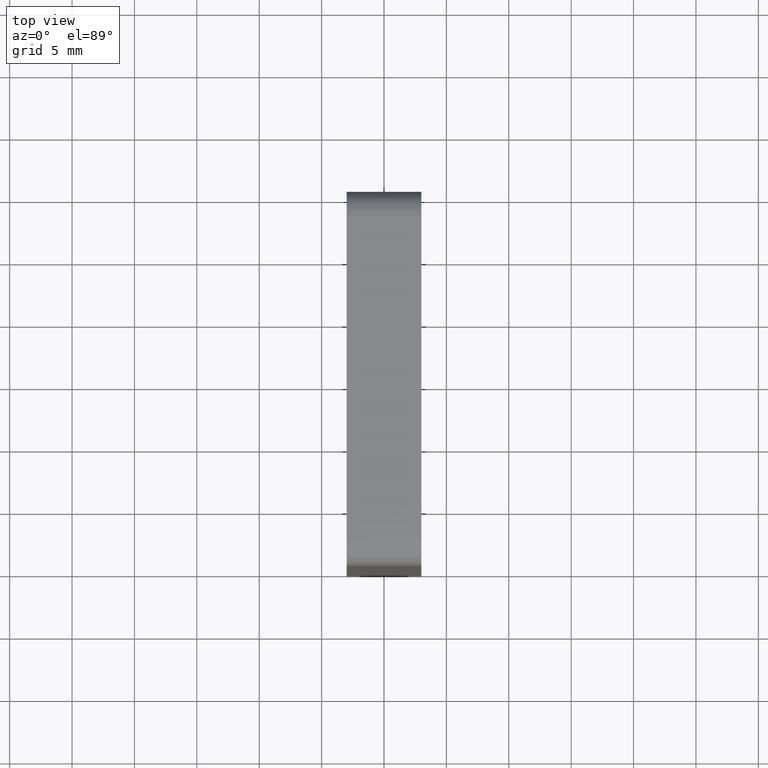
[diagram: clean part render]
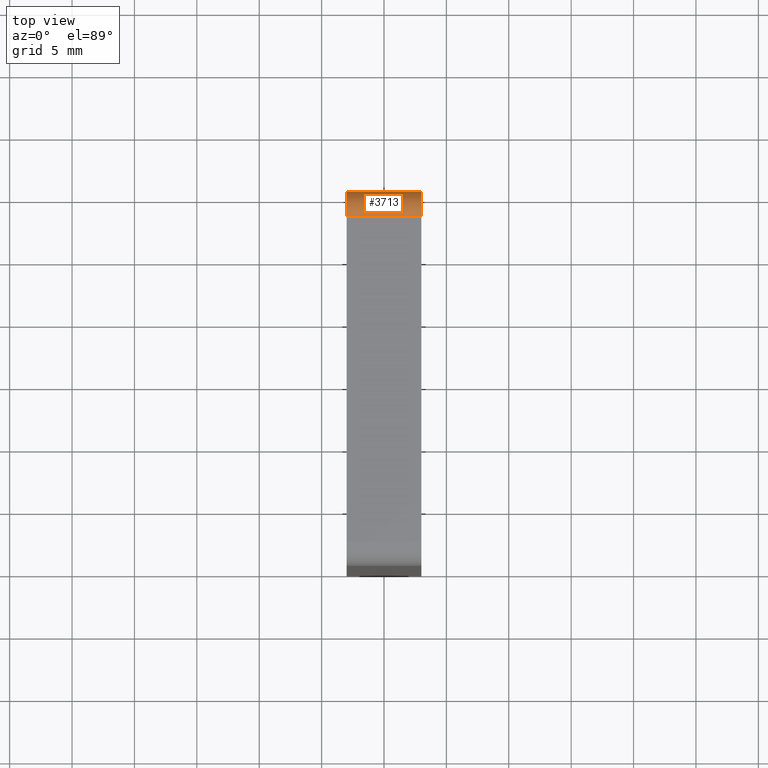
[diagram: same view with one face highlighted and labeled with its STEP entity id]
A machine part, top view. The second image highlights one B-rep face of the part: STEP entity #3713.
In plain terms, the highlighted cylindrical surface (edge-blend (fillet) strip) has radius 2 mm, axis along (-1, 0, 0).
Its self-contained STEP definition (entity closure, byte-faithful):
#55 = CYLINDRICAL_SURFACE ( 'NONE', #6594, 2.000000000000001800 ) ;
#267 = ORIENTED_EDGE ( 'NONE', *, *, #6975, .F. ) ;
#380 = VECTOR ( 'NONE', #5052, 1000.000000000000000 ) ;
#957 = VERTEX_POINT ( 'NONE', #1884 ) ;
#1833 = CARTESIAN_POINT ( 'NONE',  ( 3.000000000000000000, 12.99999999999999800, 49.99999999999997200 ) ) ;
#1884 = CARTESIAN_POINT ( 'NONE',  ( 3.000000000000000000, 12.99999999999999800, 49.99999999999997200 ) ) ;
#1987 = AXIS2_PLACEMENT_3D ( 'NONE', #9163, #6773, #8390 ) ;
#2040 = LINE ( 'NONE', #3089, #4448 ) ;
#2158 = LINE ( 'NONE', #1833, #380 ) ;
#2191 = DIRECTION ( 'NONE',  ( 0.0000000000000000000, 0.0000000000000000000, 1.000000000000000000 ) ) ;
#2290 = DIRECTION ( 'NONE',  ( -1.000000000000000000, -0.0000000000000000000, -0.0000000000000000000 ) ) ;
#2297 = ORIENTED_EDGE ( 'NONE', *, *, #5365, .F. ) ;
#3089 = CARTESIAN_POINT ( 'NONE',  ( 3.000000000000000000, 15.00000000000000000, 47.99999999999997200 ) ) ;
#3713 = ADVANCED_FACE ( 'NONE', ( #6220 ), #55, .T. ) ;
#3861 = DIRECTION ( 'NONE',  ( -1.000000000000000000, 0.0000000000000000000, 0.0000000000000000000 ) ) ;
#3987 = CARTESIAN_POINT ( 'NONE',  ( -3.000000000000000000, 15.00000000000000000, 47.99999999999997200 ) ) ;
#4400 = AXIS2_PLACEMENT_3D ( 'NONE', #8763, #2290, #8725 ) ;
#4448 = VECTOR ( 'NONE', #7812, 1000.000000000000000 ) ;
#4660 = VERTEX_POINT ( 'NONE', #10020 ) ;
#5052 = DIRECTION ( 'NONE',  ( -1.000000000000000000, 0.0000000000000000000, 0.0000000000000000000 ) ) ;
#5365 = EDGE_CURVE ( 'NONE', #5471, #4660, #2040, .T. ) ;
#5471 = VERTEX_POINT ( 'NONE', #3987 ) ;
#5728 = EDGE_LOOP ( 'NONE', ( #9436, #2297, #8406, #267 ) ) ;
#6220 = FACE_OUTER_BOUND ( 'NONE', #5728, .T. ) ;
#6594 = AXIS2_PLACEMENT_3D ( 'NONE', #10186, #3861, #2191 ) ;
#6773 = DIRECTION ( 'NONE',  ( 1.000000000000000000, 0.0000000000000000000, 0.0000000000000000000 ) ) ;
#6778 = CIRCLE ( 'NONE', #1987, 2.000000000000001800 ) ;
#6848 = EDGE_CURVE ( 'NONE', #7890, #5471, #7925, .T. ) ;
#6975 = EDGE_CURVE ( 'NONE', #957, #7890, #2158, .T. ) ;
#7812 = DIRECTION ( 'NONE',  ( 1.000000000000000000, -0.0000000000000000000, -0.0000000000000000000 ) ) ;
#7890 = VERTEX_POINT ( 'NONE', #9209 ) ;
#7925 = CIRCLE ( 'NONE', #4400, 2.000000000000001800 ) ;
#8390 = DIRECTION ( 'NONE',  ( 0.0000000000000000000, 0.0000000000000000000, 1.000000000000000000 ) ) ;
#8406 = ORIENTED_EDGE ( 'NONE', *, *, #6848, .F. ) ;
#8725 = DIRECTION ( 'NONE',  ( 0.0000000000000000000, 0.0000000000000000000, 1.000000000000000000 ) ) ;
#8763 = CARTESIAN_POINT ( 'NONE',  ( -3.000000000000000000, 12.99999999999999800, 47.99999999999997200 ) ) ;
#9163 = CARTESIAN_POINT ( 'NONE',  ( 3.000000000000000000, 12.99999999999999800, 47.99999999999997200 ) ) ;
#9209 = CARTESIAN_POINT ( 'NONE',  ( -3.000000000000000000, 12.99999999999999800, 49.99999999999997200 ) ) ;
#9436 = ORIENTED_EDGE ( 'NONE', *, *, #9685, .F. ) ;
#9685 = EDGE_CURVE ( 'NONE', #4660, #957, #6778, .T. ) ;
#10020 = CARTESIAN_POINT ( 'NONE',  ( 3.000000000000000000, 15.00000000000000000, 47.99999999999997200 ) ) ;
#10186 = CARTESIAN_POINT ( 'NONE',  ( 3.000000000000000000, 12.99999999999999800, 47.99999999999997200 ) ) ;